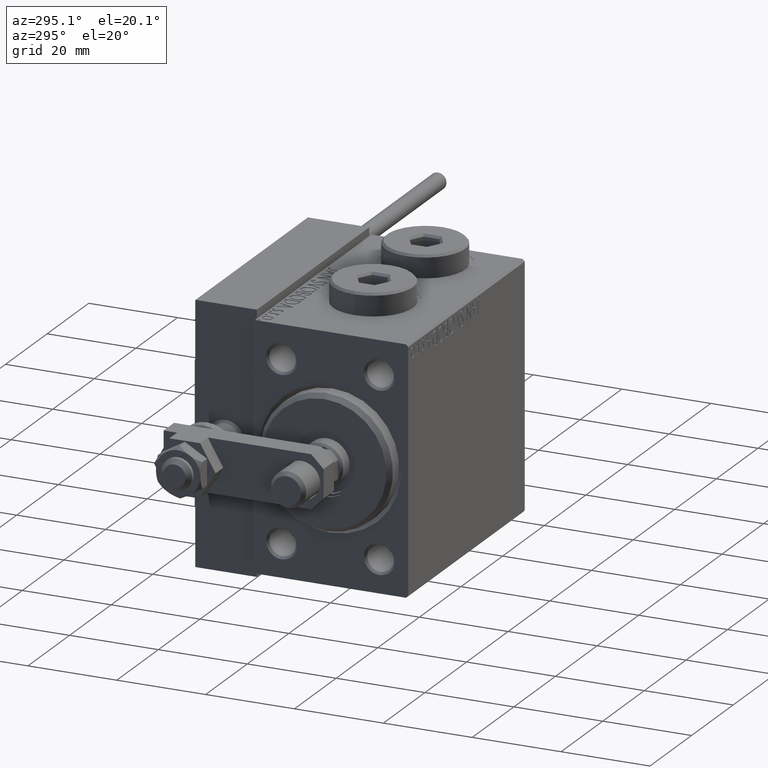
[diagram: clean part render]
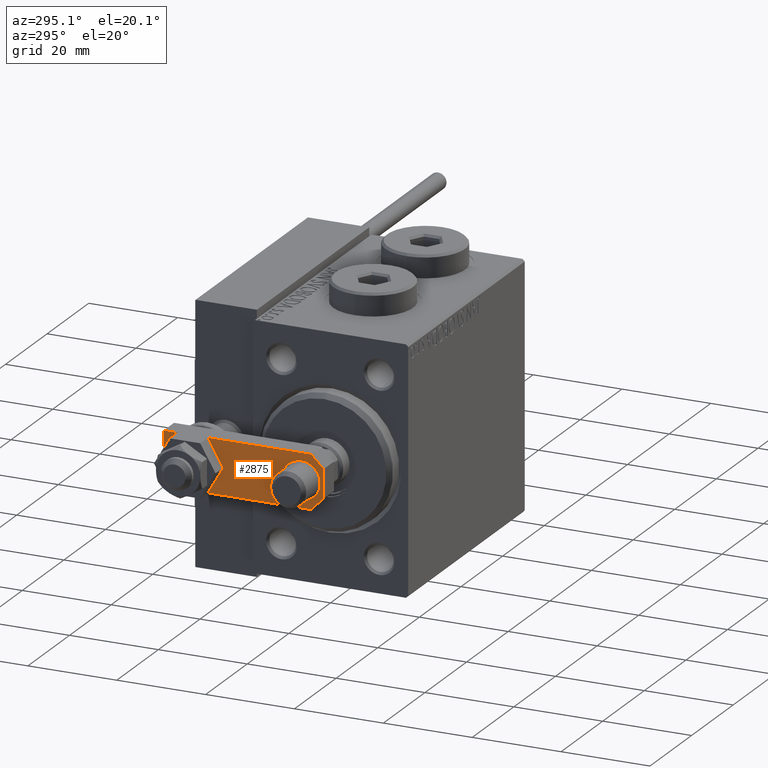
[diagram: same view with one face highlighted and labeled with its STEP entity id]
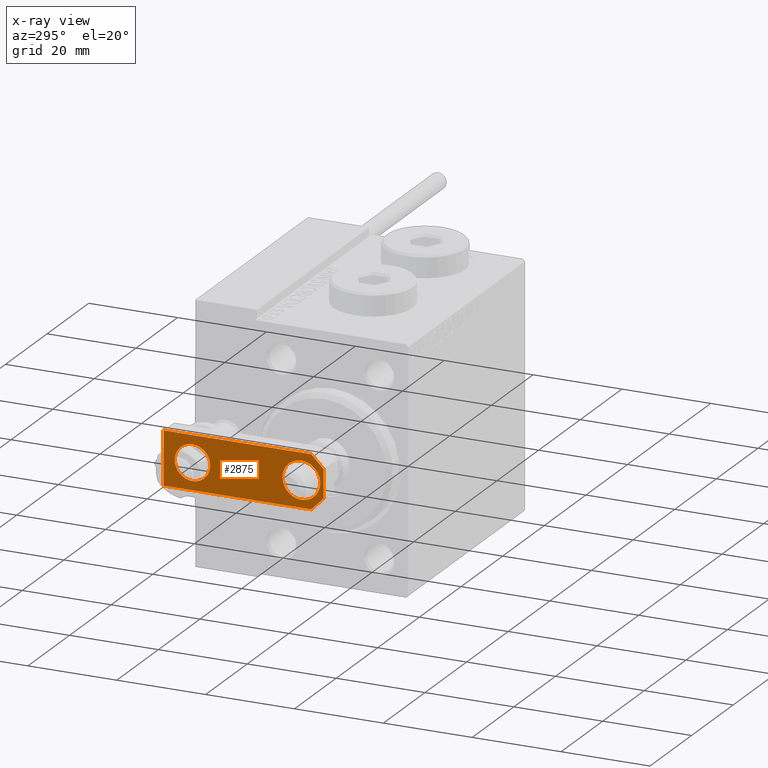
[diagram: x-ray of the same camera — body ghosted, the highlighted face saturated]
A machine part, auxiliary view. The second image highlights one B-rep face of the part: STEP entity #2875.
The next image is the same camera in x-ray: the body ghosted, the highlighted face saturated — about 0% of this face is hidden behind the body in this view.
In plain terms, the highlighted planar face has unit normal (-1, -0, 0).
Its self-contained STEP definition (entity closure, byte-faithful):
#538 = DIRECTION ( 'NONE',  ( 1.000000000000000000, 0.000000000000000000, 0.000000000000000000 ) ) ;
#1210 = EDGE_CURVE ( 'NONE', #23320, #51805, #48238, .T. ) ;
#1761 = ORIENTED_EDGE ( 'NONE', *, *, #24132, .T. ) ;
#2875 = ADVANCED_FACE ( 'NONE', ( #22900, #18884, #30414 ), #5773, .T. ) ;
#3036 = CARTESIAN_POINT ( 'NONE',  ( 6.000000000000008882, 36.00000000000000000, 5.000000000000000000 ) ) ;
#3065 = LINE ( 'NONE', #3592, #13610 ) ;
#3547 = LINE ( 'NONE', #7843, #50452 ) ;
#3592 = CARTESIAN_POINT ( 'NONE',  ( 1.599999999999989653, -1.599999999999995204, 5.000000000000000000 ) ) ;
#3605 = ORIENTED_EDGE ( 'NONE', *, *, #30900, .T. ) ;
#4271 = CARTESIAN_POINT ( 'NONE',  ( -5.999999999999995559, 0.000000000000000000, 5.000000000000000000 ) ) ;
#4508 = CARTESIAN_POINT ( 'NONE',  ( -4.250000000000000000, 5.000000000000000888, 5.000000000000000000 ) ) ;
#5773 = PLANE ( 'NONE',  #17107 ) ;
#6414 = DIRECTION ( 'NONE',  ( 0.7071067811865463515, -0.7071067811865487940, 0.000000000000000000 ) ) ;
#6556 = CARTESIAN_POINT ( 'NONE',  ( 0.000000000000000000, 0.000000000000000000, 5.000000000000000000 ) ) ;
#6736 = AXIS2_PLACEMENT_3D ( 'NONE', #12342, #37234, #538 ) ;
#7302 = VERTEX_POINT ( 'NONE', #4508 ) ;
#7422 = CARTESIAN_POINT ( 'NONE',  ( -5.999999999999995559, 2.800000000000010925, 5.000000000000000000 ) ) ;
#7642 = EDGE_CURVE ( 'NONE', #36279, #12366, #13910, .T. ) ;
#7843 = CARTESIAN_POINT ( 'NONE',  ( -5.999999999999991118, 36.00000000000000000, 5.000000000000000000 ) ) ;
#9144 = AXIS2_PLACEMENT_3D ( 'NONE', #28838, #36882, #32602 ) ;
#9493 = DIRECTION ( 'NONE',  ( 0.000000000000000000, 0.000000000000000000, 1.000000000000000000 ) ) ;
#9840 = ORIENTED_EDGE ( 'NONE', *, *, #23330, .F. ) ;
#10415 = VERTEX_POINT ( 'NONE', #7422 ) ;
#12342 = CARTESIAN_POINT ( 'NONE',  ( 1.925929944387235853E-31, 5.000000000000000888, 5.000000000000000000 ) ) ;
#12366 = VERTEX_POINT ( 'NONE', #48272 ) ;
#13610 = VECTOR ( 'NONE', #15928, 1000.000000000000000 ) ;
#13910 = CIRCLE ( 'NONE', #38673, 4.000000000000000000 ) ;
#14112 = DIRECTION ( 'NONE',  ( 0.000000000000000000, 0.000000000000000000, 1.000000000000000000 ) ) ;
#15861 = ORIENTED_EDGE ( 'NONE', *, *, #1210, .T. ) ;
#15928 = DIRECTION ( 'NONE',  ( 0.7071067811865487940, 0.7071067811865463515, -0.000000000000000000 ) ) ;
#16129 = CIRCLE ( 'NONE', #6736, 4.250000000000000000 ) ;
#17107 = AXIS2_PLACEMENT_3D ( 'NONE', #6556, #22384, #51541 ) ;
#17883 = CIRCLE ( 'NONE', #38405, 4.250000000000000000 ) ;
#18319 = DIRECTION ( 'NONE',  ( 1.000000000000000000, 0.000000000000000000, 0.000000000000000000 ) ) ;
#18394 = VERTEX_POINT ( 'NONE', #47578 ) ;
#18884 = FACE_OUTER_BOUND ( 'NONE', #19955, .T. ) ;
#19386 = DIRECTION ( 'NONE',  ( -1.000000000000000000, 0.000000000000000000, 0.000000000000000000 ) ) ;
#19759 = VERTEX_POINT ( 'NONE', #49626 ) ;
#19955 = EDGE_LOOP ( 'NONE', ( #26803, #1761, #15861, #3605, #40571, #40754 ) ) ;
#20569 = VECTOR ( 'NONE', #19386, 1000.000000000000000 ) ;
#21066 = VERTEX_POINT ( 'NONE', #52385 ) ;
#22384 = DIRECTION ( 'NONE',  ( -0.000000000000000000, 0.000000000000000000, 1.000000000000000000 ) ) ;
#22900 = FACE_BOUND ( 'NONE', #25162, .T. ) ;
#23032 = VECTOR ( 'NONE', #24122, 1000.000000000000000 ) ;
#23320 = VERTEX_POINT ( 'NONE', #48945 ) ;
#23330 = EDGE_CURVE ( 'NONE', #12366, #36279, #33089, .T. ) ;
#23508 = VERTEX_POINT ( 'NONE', #38217 ) ;
#24122 = DIRECTION ( 'NONE',  ( 1.000000000000000000, 0.000000000000000000, 0.000000000000000000 ) ) ;
#24132 = EDGE_CURVE ( 'NONE', #10415, #23320, #46077, .T. ) ;
#25162 = EDGE_LOOP ( 'NONE', ( #29293, #9840 ) ) ;
#25365 = ORIENTED_EDGE ( 'NONE', *, *, #42880, .F. ) ;
#26803 = ORIENTED_EDGE ( 'NONE', *, *, #44254, .T. ) ;
#28173 = DIRECTION ( 'NONE',  ( -1.204669080539449344E-16, -1.000000000000000000, 0.000000000000000000 ) ) ;
#28514 = EDGE_CURVE ( 'NONE', #23508, #21066, #44019, .T. ) ;
#28838 = CARTESIAN_POINT ( 'NONE',  ( 0.000000000000000000, 29.50000000000000000, 5.000000000000000000 ) ) ;
#29293 = ORIENTED_EDGE ( 'NONE', *, *, #7642, .F. ) ;
#30414 = FACE_BOUND ( 'NONE', #40076, .T. ) ;
#30434 = DIRECTION ( 'NONE',  ( 1.000000000000000000, 0.000000000000000000, 0.000000000000000000 ) ) ;
#30826 = EDGE_CURVE ( 'NONE', #7302, #19759, #17883, .T. ) ;
#30900 = EDGE_CURVE ( 'NONE', #51805, #23508, #3065, .T. ) ;
#31239 = CARTESIAN_POINT ( 'NONE',  ( 3.199999999999986855, 0.000000000000000000, 5.000000000000000000 ) ) ;
#32602 = DIRECTION ( 'NONE',  ( 1.000000000000000000, 0.000000000000000000, 0.000000000000000000 ) ) ;
#33089 = CIRCLE ( 'NONE', #9144, 4.000000000000000000 ) ;
#34800 = CARTESIAN_POINT ( 'NONE',  ( -1.600000000000003197, -1.599999999999997646, 5.000000000000000000 ) ) ;
#35253 = CARTESIAN_POINT ( 'NONE',  ( -4.000000000000000000, 29.50000000000000000, 5.000000000000000000 ) ) ;
#36279 = VERTEX_POINT ( 'NONE', #35253 ) ;
#36882 = DIRECTION ( 'NONE',  ( 0.000000000000000000, 0.000000000000000000, 1.000000000000000000 ) ) ;
#37234 = DIRECTION ( 'NONE',  ( 0.000000000000000000, 0.000000000000000000, 1.000000000000000000 ) ) ;
#38217 = CARTESIAN_POINT ( 'NONE',  ( 5.999999999999996447, 2.799999999999997158, 5.000000000000000000 ) ) ;
#38405 = AXIS2_PLACEMENT_3D ( 'NONE', #43019, #14112, #30434 ) ;
#38673 = AXIS2_PLACEMENT_3D ( 'NONE', #50721, #9493, #18319 ) ;
#39735 = LINE ( 'NONE', #3036, #20569 ) ;
#40076 = EDGE_LOOP ( 'NONE', ( #44050, #25365 ) ) ;
#40571 = ORIENTED_EDGE ( 'NONE', *, *, #28514, .T. ) ;
#40754 = ORIENTED_EDGE ( 'NONE', *, *, #46203, .T. ) ;
#42880 = EDGE_CURVE ( 'NONE', #19759, #7302, #16129, .T. ) ;
#43019 = CARTESIAN_POINT ( 'NONE',  ( 1.925929944387235853E-31, 5.000000000000000888, 5.000000000000000000 ) ) ;
#44019 = LINE ( 'NONE', #47258, #47741 ) ;
#44050 = ORIENTED_EDGE ( 'NONE', *, *, #30826, .F. ) ;
#44254 = EDGE_CURVE ( 'NONE', #18394, #10415, #3547, .T. ) ;
#45100 = VECTOR ( 'NONE', #6414, 1000.000000000000000 ) ;
#46077 = LINE ( 'NONE', #34800, #45100 ) ;
#46203 = EDGE_CURVE ( 'NONE', #21066, #18394, #39735, .T. ) ;
#47258 = CARTESIAN_POINT ( 'NONE',  ( 5.999999999999995559, 0.000000000000000000, 5.000000000000000000 ) ) ;
#47578 = CARTESIAN_POINT ( 'NONE',  ( -5.999999999999991118, 36.00000000000000000, 5.000000000000000000 ) ) ;
#47741 = VECTOR ( 'NONE', #51263, 1000.000000000000000 ) ;
#48238 = LINE ( 'NONE', #4271, #23032 ) ;
#48272 = CARTESIAN_POINT ( 'NONE',  ( 4.000000000000000000, 29.50000000000000000, 5.000000000000000000 ) ) ;
#48945 = CARTESIAN_POINT ( 'NONE',  ( -3.199999999999995737, 0.000000000000000000, 5.000000000000000000 ) ) ;
#49626 = CARTESIAN_POINT ( 'NONE',  ( 4.250000000000000000, 5.000000000000001776, 5.000000000000000000 ) ) ;
#50452 = VECTOR ( 'NONE', #28173, 1000.000000000000000 ) ;
#50721 = CARTESIAN_POINT ( 'NONE',  ( 0.000000000000000000, 29.50000000000000000, 5.000000000000000000 ) ) ;
#51263 = DIRECTION ( 'NONE',  ( 3.614007241618348278E-16, 1.000000000000000000, 0.000000000000000000 ) ) ;
#51541 = DIRECTION ( 'NONE',  ( 1.000000000000000000, 0.000000000000000000, 0.000000000000000000 ) ) ;
#51805 = VERTEX_POINT ( 'NONE', #31239 ) ;
#52385 = CARTESIAN_POINT ( 'NONE',  ( 6.000000000000008882, 36.00000000000000000, 5.000000000000000000 ) ) ;